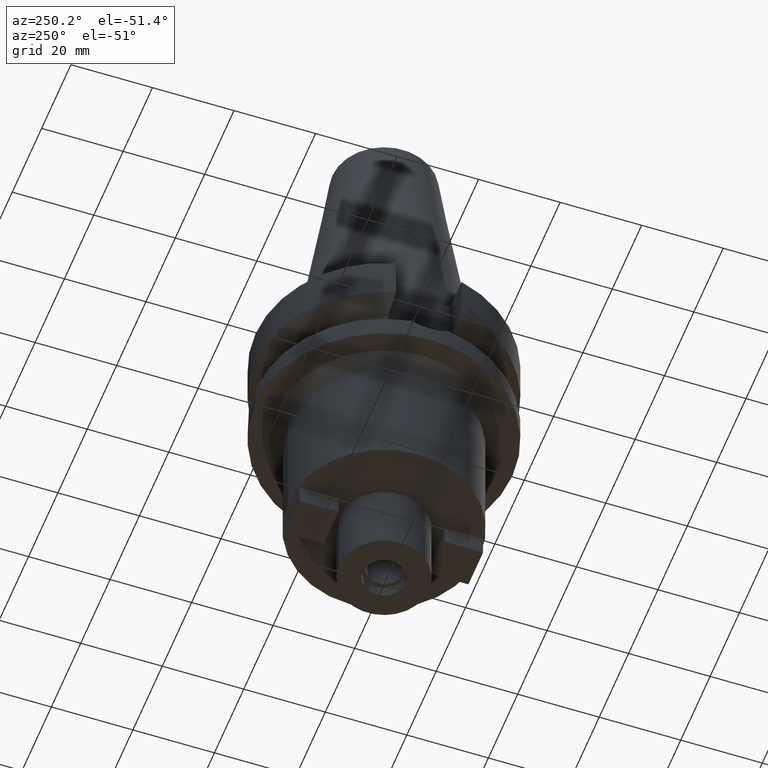
[diagram: clean part render]
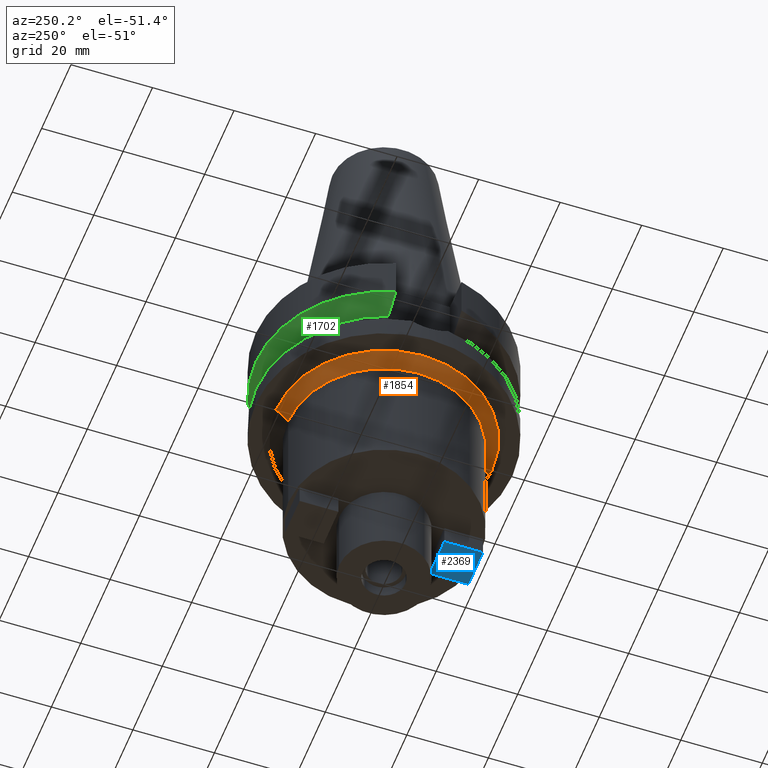
[diagram: same view with three faces highlighted in distinct colors, each labeled with its STEP entity id]
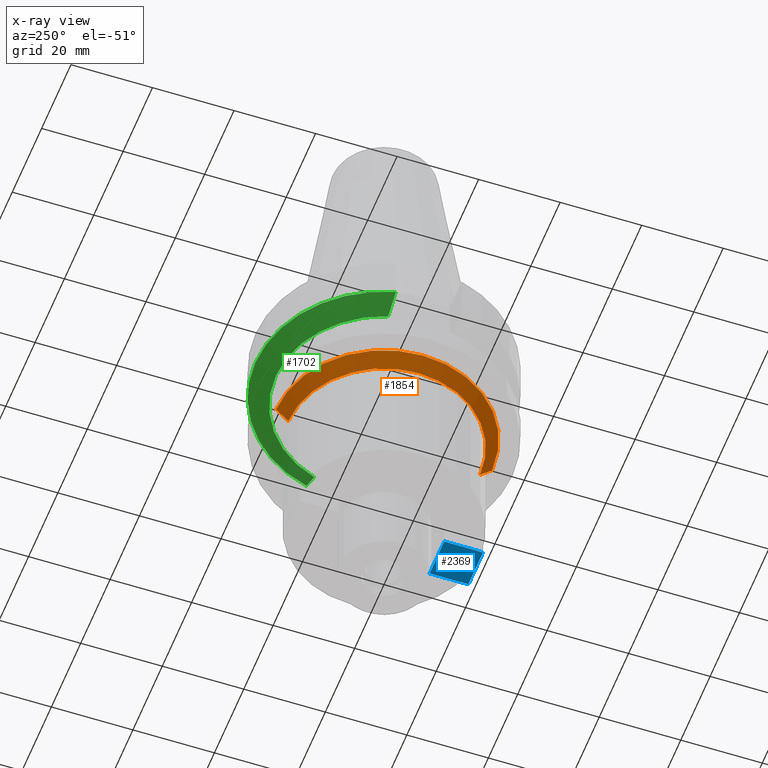
[diagram: x-ray of the same camera — body ghosted, the three highlighted faces saturated]
A machine part, auxiliary view with three faces highlighted in distinct colors.
The next image is the same camera in x-ray (body ghosted, the three faces saturated) — at least one of them is partly hidden behind the body in this view.
Their STEP definitions:

[orange] entity #1854 — the highlighted conical surface has half-angle 45 deg.
#644=CARTESIAN_POINT('',(0.E0,0.E0,-2.7E1));
#645=DIRECTION('',(0.E0,0.E0,-1.E0));
#646=DIRECTION('',(0.E0,-1.E0,0.E0));
#647=AXIS2_PLACEMENT_3D('',#644,#645,#646);
#660=DIRECTION('',(0.E0,7.071067811865E-1,-7.071067811865E-1));
#661=VECTOR('',#660,4.242640687119E0);
#662=CARTESIAN_POINT('',(0.E0,-2.65E1,-2.7E1));
#663=LINE('',#662,#661);
#667=CARTESIAN_POINT('',(0.E0,0.E0,-3.E1));
#668=DIRECTION('',(0.E0,0.E0,-1.E0));
#669=DIRECTION('',(0.E0,-1.E0,0.E0));
#670=AXIS2_PLACEMENT_3D('',#667,#668,#669);
#675=DIRECTION('',(0.E0,-7.071067811865E-1,-7.071067811866E-1));
#676=VECTOR('',#675,4.242640687119E0);
#677=CARTESIAN_POINT('',(0.E0,2.65E1,-2.7E1));
#678=LINE('',#677,#676);
#1288=CARTESIAN_POINT('',(0.E0,2.35E1,-3.E1));
#1289=VERTEX_POINT('',#1288);
#1290=CARTESIAN_POINT('',(0.E0,-2.35E1,-3.E1));
#1291=VERTEX_POINT('',#1290);
#1292=CARTESIAN_POINT('',(0.E0,2.65E1,-2.7E1));
#1293=VERTEX_POINT('',#1292);
#1294=CARTESIAN_POINT('',(0.E0,-2.65E1,-2.7E1));
#1295=VERTEX_POINT('',#1294);
#1840=CARTESIAN_POINT('',(0.E0,0.E0,-2.85E1));
#1841=DIRECTION('',(0.E0,0.E0,1.E0));
#1842=DIRECTION('',(0.E0,1.E0,0.E0));
#1843=AXIS2_PLACEMENT_3D('',#1840,#1841,#1842);
#1844=CONICAL_SURFACE('',#1843,2.5E1,4.5E1);
#1846=ORIENTED_EDGE('',*,*,#1845,.F.);
#1847=ORIENTED_EDGE('',*,*,#1833,.F.);
#1849=ORIENTED_EDGE('',*,*,#1848,.T.);
#1851=ORIENTED_EDGE('',*,*,#1850,.T.);
#1852=EDGE_LOOP('',(#1846,#1847,#1849,#1851));
#1853=FACE_OUTER_BOUND('',#1852,.F.);
#648=CIRCLE('',#647,2.65E1);
#671=CIRCLE('',#670,2.35E1);
#1833=EDGE_CURVE('',#1295,#1293,#648,.T.);
#1845=EDGE_CURVE('',#1293,#1289,#678,.T.);
#1848=EDGE_CURVE('',#1295,#1291,#663,.T.);
#1850=EDGE_CURVE('',#1291,#1289,#671,.T.);
#1854=ADVANCED_FACE('',(#1853),#1844,.T.);

[blue] entity #2369 — the highlighted planar face has unit normal (0, 0, -1).
#1138=DIRECTION('',(1.E0,0.E0,0.E0));
#1139=VECTOR('',#1138,1.E1);
#1140=CARTESIAN_POINT('',(-5.E0,-1.3E1,-6.5E1));
#1141=LINE('',#1140,#1139);
#1166=DIRECTION('',(0.E0,1.E0,0.E0));
#1167=VECTOR('',#1166,9.5E0);
#1168=CARTESIAN_POINT('',(-5.E0,-2.25E1,-6.5E1));
#1169=LINE('',#1168,#1167);
#1194=DIRECTION('',(0.E0,1.E0,0.E0));
#1195=VECTOR('',#1194,9.5E0);
#1196=CARTESIAN_POINT('',(5.E0,-2.25E1,-6.5E1));
#1197=LINE('',#1196,#1195);
#1201=DIRECTION('',(1.E0,0.E0,0.E0));
#1202=VECTOR('',#1201,1.E1);
#1203=CARTESIAN_POINT('',(-5.E0,-2.25E1,-6.5E1));
#1204=LINE('',#1203,#1202);
#1393=CARTESIAN_POINT('',(5.E0,-1.3E1,-6.5E1));
#1394=VERTEX_POINT('',#1393);
#1395=CARTESIAN_POINT('',(5.E0,-2.25E1,-6.5E1));
#1396=VERTEX_POINT('',#1395);
#1397=CARTESIAN_POINT('',(-5.E0,-1.3E1,-6.5E1));
#1398=VERTEX_POINT('',#1397);
#1399=CARTESIAN_POINT('',(-5.E0,-2.25E1,-6.5E1));
#1400=VERTEX_POINT('',#1399);
#2358=CARTESIAN_POINT('',(5.E0,-1.3E1,-6.5E1));
#2359=DIRECTION('',(0.E0,0.E0,-1.E0));
#2360=DIRECTION('',(0.E0,-1.E0,0.E0));
#2361=AXIS2_PLACEMENT_3D('',#2358,#2359,#2360);
#2362=PLANE('',#2361);
#2363=ORIENTED_EDGE('',*,*,#2310,.T.);
#2364=ORIENTED_EDGE('',*,*,#2325,.F.);
#2365=ORIENTED_EDGE('',*,*,#2339,.F.);
#2366=ORIENTED_EDGE('',*,*,#2352,.T.);
#2367=EDGE_LOOP('',(#2363,#2364,#2365,#2366));
#2368=FACE_OUTER_BOUND('',#2367,.F.);
#2310=EDGE_CURVE('',#1396,#1394,#1197,.T.);
#2325=EDGE_CURVE('',#1398,#1394,#1141,.T.);
#2339=EDGE_CURVE('',#1400,#1398,#1169,.T.);
#2352=EDGE_CURVE('',#1400,#1396,#1204,.T.);
#2369=ADVANCED_FACE('',(#2368),#2362,.T.);

[green] entity #1702 — the highlighted conical surface has half-angle 60 deg.
#344=CARTESIAN_POINT('',(3.045402291443E1,8.049999275004E0,-1.156551218256E1));
#345=CARTESIAN_POINT('',(2.987645776055E1,8.049999275004E0,-1.188789692348E1));
#346=CARTESIAN_POINT('',(2.872091173037E1,8.049999726114E0,-1.253193803254E1));
#347=CARTESIAN_POINT('',(2.698538638569E1,8.050002046095E0,-1.349404295160E1));
#348=CARTESIAN_POINT('',(2.582730534176E1,8.049995408368E0,-1.413348344573E1));
#349=CARTESIAN_POINT('',(2.524772413358E1,8.049995408368E0,-1.445229208467E1));
#388=CARTESIAN_POINT('',(-2.524772216545E1,8.050001581128E0,-1.445224491740E1));
#389=CARTESIAN_POINT('',(-2.582727364277E1,8.050001581128E0,-1.413345270699E1));
#390=CARTESIAN_POINT('',(-2.698547379864E1,8.049999815260E0,-1.349419180152E1));
#391=CARTESIAN_POINT('',(-2.872100142700E1,8.049998274899E0,-1.253209145609E1));
#392=CARTESIAN_POINT('',(-2.987642828234E1,8.050004148395E0,-1.188786872078E1));
#393=CARTESIAN_POINT('',(-3.045402162623E1,8.050004148395E0,-1.156546828569E1));
#398=CARTESIAN_POINT('',(0.E0,1.065333950388E-14,-1.445225699861E1));
#399=DIRECTION('',(0.E0,0.E0,-1.E0));
#400=DIRECTION('',(-9.527442516822E-1,3.037735849057E-1,0.E0));
#401=AXIS2_PLACEMENT_3D('',#398,#399,#400);
#406=CARTESIAN_POINT('',(0.E0,1.065333950388E-14,-1.445225699861E1));
#407=DIRECTION('',(0.E0,0.E0,-1.E0));
#408=DIRECTION('',(0.E0,1.E0,0.E0));
#409=AXIS2_PLACEMENT_3D('',#406,#407,#408);
#414=CARTESIAN_POINT('',(0.E0,1.065333950388E-14,-1.156550565267E1));
#415=DIRECTION('',(0.E0,0.E0,1.E0));
#416=DIRECTION('',(9.667943721520E-1,2.555555555555E-1,0.E0));
#417=AXIS2_PLACEMENT_3D('',#414,#415,#416);
#422=CARTESIAN_POINT('',(0.E0,1.065333950388E-14,-1.156550565267E1));
#423=DIRECTION('',(0.E0,0.E0,1.E0));
#424=DIRECTION('',(0.E0,1.E0,0.E0));
#425=AXIS2_PLACEMENT_3D('',#422,#423,#424);
#1341=CARTESIAN_POINT('',(-2.524772216545E1,8.050001581128E0,
-1.445224491740E1));
#1342=VERTEX_POINT('',#1341);
#1343=CARTESIAN_POINT('',(2.524772413358E1,8.049995408368E0,-1.445229208467E1));
#1344=VERTEX_POINT('',#1343);
#1345=CARTESIAN_POINT('',(0.E0,2.65E1,-1.445225699861E1));
#1346=VERTEX_POINT('',#1345);
#1377=VERTEX_POINT('',#393);
#1382=VERTEX_POINT('',#344);
#1383=CARTESIAN_POINT('',(0.E0,3.15E1,-1.156550565267E1));
#1384=VERTEX_POINT('',#1383);
#1687=CARTESIAN_POINT('',(0.E0,1.065333950388E-14,-1.300888132564E1));
#1688=DIRECTION('',(0.E0,0.E0,1.E0));
#1689=DIRECTION('',(0.E0,1.E0,0.E0));
#1690=AXIS2_PLACEMENT_3D('',#1687,#1688,#1689);
#1691=CONICAL_SURFACE('',#1690,2.9E1,6.E1);
#1692=ORIENTED_EDGE('',*,*,#1676,.F.);
#1693=ORIENTED_EDGE('',*,*,#1665,.T.);
#1694=ORIENTED_EDGE('',*,*,#1663,.T.);
#1695=ORIENTED_EDGE('',*,*,#1642,.F.);
#1697=ORIENTED_EDGE('',*,*,#1696,.T.);
#1699=ORIENTED_EDGE('',*,*,#1698,.T.);
#1700=EDGE_LOOP('',(#1692,#1693,#1694,#1695,#1697,#1699));
#1701=FACE_OUTER_BOUND('',#1700,.F.);
#350=B_SPLINE_CURVE_WITH_KNOTS('',3,(#344,#345,#346,#347,#348,#349),
.UNSPECIFIED.,.F.,.F.,(4,1,1,4),(0.E0,3.333333333333E-1,6.666666666667E-1,1.E0),
.UNSPECIFIED.);
#394=B_SPLINE_CURVE_WITH_KNOTS('',3,(#388,#389,#390,#391,#392,#393),
.UNSPECIFIED.,.F.,.F.,(4,1,1,4),(0.E0,3.333333333333E-1,6.666666666667E-1,1.E0),
.UNSPECIFIED.);
#402=CIRCLE('',#401,2.65E1);
#410=CIRCLE('',#409,2.65E1);
#418=CIRCLE('',#417,3.15E1);
#426=CIRCLE('',#425,3.15E1);
#1642=EDGE_CURVE('',#1382,#1344,#350,.T.);
#1663=EDGE_CURVE('',#1346,#1344,#410,.T.);
#1665=EDGE_CURVE('',#1342,#1346,#402,.T.);
#1676=EDGE_CURVE('',#1342,#1377,#394,.T.);
#1696=EDGE_CURVE('',#1382,#1384,#418,.T.);
#1698=EDGE_CURVE('',#1384,#1377,#426,.T.);
#1702=ADVANCED_FACE('',(#1701),#1691,.T.);